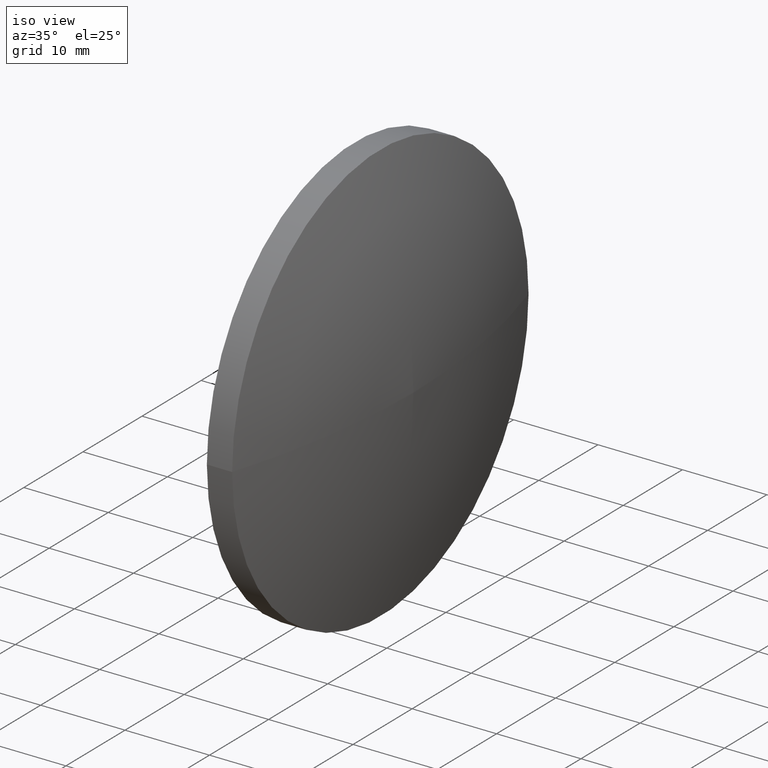
[diagram: clean part render]
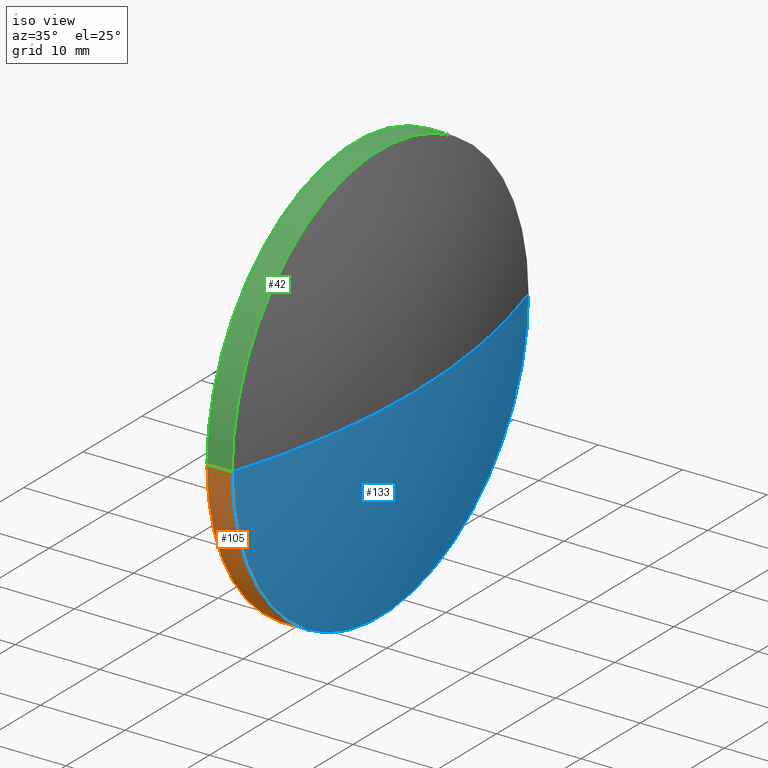
[diagram: same view with three faces highlighted in distinct colors, each labeled with its STEP entity id]
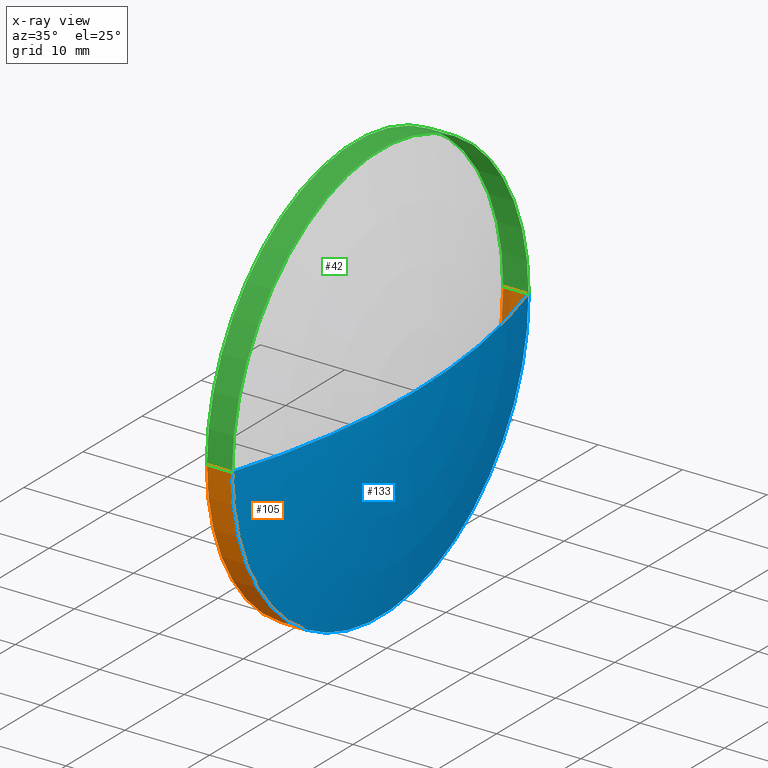
[diagram: x-ray of the same camera — body ghosted, the three highlighted faces saturated]
A machine part, iso view with three faces highlighted in distinct colors.
The next image is the same camera in x-ray (body ghosted, the three faces saturated) — at least one of them is partly hidden behind the body in this view.
Their STEP definitions:

[orange] entity #105 — the highlighted conical surface has half-angle 0.111 deg.
#15 = DIRECTION ( 'NONE',  ( 0.9999924538174724800, -0.003884881994361463100, 2.378808637466067800E-019 ) ) ;
#16 = CARTESIAN_POINT ( 'NONE',  ( 456.5490901359143000, -36.16492559597344300, 0.0000000000000000000 ) ) ;
#17 = CIRCLE ( 'NONE', #65, 25.00578017029978600 ) ;
#21 = VECTOR ( 'NONE', #169, 1000.000000000000000 ) ;
#22 = CARTESIAN_POINT ( 'NONE',  ( 453.5491014551880700, -36.15909827298190000, 0.0000000000000000000 ) ) ;
#23 = EDGE_CURVE ( 'NONE', #58, #166, #17, .T. ) ;
#33 = EDGE_CURVE ( 'NONE', #61, #166, #47, .T. ) ;
#35 = DIRECTION ( 'NONE',  ( 0.9999981134525887100, -0.001942444661694015300, 0.0000000000000000000 ) ) ;
#37 = LINE ( 'NONE', #182, #21 ) ;
#43 = CARTESIAN_POINT ( 'NONE',  ( 453.5976624801175500, -11.15919260026350700, 0.0000000000000000000 ) ) ;
#47 = LINE ( 'NONE', #89, #124 ) ;
#49 = DIRECTION ( 'NONE',  ( -0.9999981134525887100, 0.001942444661694015300, -0.0000000000000000000 ) ) ;
#58 = VERTEX_POINT ( 'NONE', #148 ) ;
#59 = DIRECTION ( 'NONE',  ( -0.001942444661694358800, -0.9999981134525884900, 0.0000000000000000000 ) ) ;
#61 = VERTEX_POINT ( 'NONE', #135 ) ;
#64 = VERTEX_POINT ( 'NONE', #43 ) ;
#65 = AXIS2_PLACEMENT_3D ( 'NONE', #16, #132, #59 ) ;
#69 = ORIENTED_EDGE ( 'NONE', *, *, #23, .T. ) ;
#75 = CARTESIAN_POINT ( 'NONE',  ( 456.5005177917109900, -61.17065859168352700, 0.0000000000000000000 ) ) ;
#82 = EDGE_CURVE ( 'NONE', #64, #61, #123, .T. ) ;
#89 = CARTESIAN_POINT ( 'NONE',  ( 456.5005177917109900, -61.17065859168338400, 3.062324864573999700E-015 ) ) ;
#102 = ORIENTED_EDGE ( 'NONE', *, *, #82, .F. ) ;
#105 = ADVANCED_FACE ( 'NONE', ( #183 ), #163, .T. ) ;
#106 = ORIENTED_EDGE ( 'NONE', *, *, #33, .F. ) ;
#111 = ORIENTED_EDGE ( 'NONE', *, *, #162, .T. ) ;
#122 = AXIS2_PLACEMENT_3D ( 'NONE', #22, #49, #141 ) ;
#123 = CIRCLE ( 'NONE', #122, 24.99995283631470500 ) ;
#124 = VECTOR ( 'NONE', #15, 1000.000000000000100 ) ;
#132 = DIRECTION ( 'NONE',  ( -0.9999981134525887100, 0.001942444661694015300, -0.0000000000000000000 ) ) ;
#135 = CARTESIAN_POINT ( 'NONE',  ( 453.5005404302585800, -61.15900394570029900, 3.061611221982759500E-015 ) ) ;
#136 = EDGE_LOOP ( 'NONE', ( #106, #102, #111, #69 ) ) ;
#141 = DIRECTION ( 'NONE',  ( -0.001942444661694166000, -0.9999981134525887100, 0.0000000000000000000 ) ) ;
#142 = AXIS2_PLACEMENT_3D ( 'NONE', #155, #35, #184 ) ;
#148 = CARTESIAN_POINT ( 'NONE',  ( 456.5976624801175500, -11.15919260026343600, 3.062324864574008000E-015 ) ) ;
#155 = CARTESIAN_POINT ( 'NONE',  ( 456.5490901359143000, -36.16492559597344300, 0.0000000000000000000 ) ) ;
#162 = EDGE_CURVE ( 'NONE', #64, #58, #37, .T. ) ;
#163 = CONICAL_SURFACE ( 'NONE', #142, 25.00578017029979000, 0.001942445883200915900 ) ;
#166 = VERTEX_POINT ( 'NONE', #75 ) ;
#169 = DIRECTION ( 'NONE',  ( 1.000000000000000000, 1.329665544336222600E-015, 0.0000000000000000000 ) ) ;
#182 = CARTESIAN_POINT ( 'NONE',  ( 456.5976624801175500, -11.15919260026350700, 0.0000000000000000000 ) ) ;
#183 = FACE_OUTER_BOUND ( 'NONE', #136, .T. ) ;
#184 = DIRECTION ( 'NONE',  ( 0.001942444661694358600, 0.9999981134525884900, 0.0000000000000000000 ) ) ;

[blue] entity #133 — the highlighted toroidal blend (fillet) surface has major radius 0.1473 mm and minor (blend) radius 82.6844 mm.
#4 = CARTESIAN_POINT ( 'NONE',  ( 460.4676614032583200, -36.17253721817285600, 0.0000000000000000000 ) ) ;
#5 = EDGE_CURVE ( 'NONE', #158, #166, #30, .T. ) ;
#7 = CARTESIAN_POINT ( 'NONE',  ( 377.7835945294264700, -36.01192769086913600, 0.0000000000000000000 ) ) ;
#16 = CARTESIAN_POINT ( 'NONE',  ( 456.5490901359143000, -36.16492559597344300, 0.0000000000000000000 ) ) ;
#17 = CIRCLE ( 'NONE', #65, 25.00578017029978600 ) ;
#23 = EDGE_CURVE ( 'NONE', #58, #166, #17, .T. ) ;
#24 = FACE_OUTER_BOUND ( 'NONE', #38, .T. ) ;
#27 = AXIS2_PLACEMENT_3D ( 'NONE', #7, #80, #140 ) ;
#29 = DIRECTION ( 'NONE',  ( -1.000000000000000000, 0.0000000000000000000, 0.0000000000000000000 ) ) ;
#30 = CIRCLE ( 'NONE', #113, 82.68435400516793300 ) ;
#38 = EDGE_LOOP ( 'NONE', ( #87, #176, #180 ) ) ;
#56 = DIRECTION ( 'NONE',  ( -2.378808637464439400E-019, -1.224644488793104600E-016, 1.000000000000000000 ) ) ;
#58 = VERTEX_POINT ( 'NONE', #148 ) ;
#59 = DIRECTION ( 'NONE',  ( -0.001942444661694358800, -0.9999981134525884900, 0.0000000000000000000 ) ) ;
#63 = TOROIDAL_SURFACE ( 'NONE', #27, -0.1472651872171409100, 82.68435400516793300 ) ;
#65 = AXIS2_PLACEMENT_3D ( 'NONE', #16, #132, #59 ) ;
#75 = CARTESIAN_POINT ( 'NONE',  ( 456.5005177917109900, -61.17065859168352700, 0.0000000000000000000 ) ) ;
#80 = DIRECTION ( 'NONE',  ( -0.9999981134525887100, 0.001942444661694015300, -0.0000000000000000000 ) ) ;
#87 = ORIENTED_EDGE ( 'NONE', *, *, #131, .F. ) ;
#91 = DIRECTION ( 'NONE',  ( 0.0000000000000000000, -1.000000000000000000, -1.224644488793104600E-016 ) ) ;
#104 = CARTESIAN_POINT ( 'NONE',  ( 377.7838805839032300, -35.86466278147475600, 0.0000000000000000000 ) ) ;
#113 = AXIS2_PLACEMENT_3D ( 'NONE', #104, #118, #29 ) ;
#118 = DIRECTION ( 'NONE',  ( 0.0000000000000000000, -0.0000000000000000000, -1.000000000000000000 ) ) ;
#131 = EDGE_CURVE ( 'NONE', #158, #58, #160, .T. ) ;
#132 = DIRECTION ( 'NONE',  ( -0.9999981134525887100, 0.001942444661694015300, -0.0000000000000000000 ) ) ;
#133 = ADVANCED_FACE ( 'NONE', ( #24 ), #63, .T. ) ;
#140 = DIRECTION ( 'NONE',  ( -0.001942444661694015300, -0.9999981134525887100, 0.0000000000000000000 ) ) ;
#148 = CARTESIAN_POINT ( 'NONE',  ( 456.5976624801175500, -11.15919260026343600, 3.062324864574008000E-015 ) ) ;
#158 = VERTEX_POINT ( 'NONE', #4 ) ;
#160 = CIRCLE ( 'NONE', #190, 82.68435400516793300 ) ;
#166 = VERTEX_POINT ( 'NONE', #75 ) ;
#176 = ORIENTED_EDGE ( 'NONE', *, *, #5, .T. ) ;
#180 = ORIENTED_EDGE ( 'NONE', *, *, #23, .F. ) ;
#185 = CARTESIAN_POINT ( 'NONE',  ( 377.7833084749496500, -36.15919260026351600, -1.803478401513073500E-017 ) ) ;
#190 = AXIS2_PLACEMENT_3D ( 'NONE', #185, #56, #91 ) ;

[green] entity #42 — the highlighted conical surface has half-angle 0.111 deg.
#14 = CARTESIAN_POINT ( 'NONE',  ( 456.5490901359143000, -36.16492559597344300, 0.0000000000000000000 ) ) ;
#15 = DIRECTION ( 'NONE',  ( 0.9999924538174724800, -0.003884881994361463100, 2.378808637466067800E-019 ) ) ;
#20 = DIRECTION ( 'NONE',  ( -0.9999981134525887100, 0.001942444661694015300, -0.0000000000000000000 ) ) ;
#21 = VECTOR ( 'NONE', #169, 1000.000000000000000 ) ;
#28 = DIRECTION ( 'NONE',  ( 0.9999981134525887100, -0.001942444661694015300, 0.0000000000000000000 ) ) ;
#33 = EDGE_CURVE ( 'NONE', #61, #166, #47, .T. ) ;
#37 = LINE ( 'NONE', #182, #21 ) ;
#40 = CIRCLE ( 'NONE', #88, 25.00578017029978600 ) ;
#42 = ADVANCED_FACE ( 'NONE', ( #134 ), #101, .T. ) ;
#43 = CARTESIAN_POINT ( 'NONE',  ( 453.5976624801175500, -11.15919260026350700, 0.0000000000000000000 ) ) ;
#45 = CARTESIAN_POINT ( 'NONE',  ( 453.5491014551880700, -36.15909827298190000, 0.0000000000000000000 ) ) ;
#47 = LINE ( 'NONE', #89, #124 ) ;
#58 = VERTEX_POINT ( 'NONE', #148 ) ;
#61 = VERTEX_POINT ( 'NONE', #135 ) ;
#64 = VERTEX_POINT ( 'NONE', #43 ) ;
#75 = CARTESIAN_POINT ( 'NONE',  ( 456.5005177917109900, -61.17065859168352700, 0.0000000000000000000 ) ) ;
#78 = DIRECTION ( 'NONE',  ( -0.001942444661694358800, -0.9999981134525884900, 0.0000000000000000000 ) ) ;
#88 = AXIS2_PLACEMENT_3D ( 'NONE', #96, #110, #78 ) ;
#89 = CARTESIAN_POINT ( 'NONE',  ( 456.5005177917109900, -61.17065859168338400, 3.062324864573999700E-015 ) ) ;
#92 = ORIENTED_EDGE ( 'NONE', *, *, #162, .F. ) ;
#96 = CARTESIAN_POINT ( 'NONE',  ( 456.5490901359143000, -36.16492559597344300, 0.0000000000000000000 ) ) ;
#101 = CONICAL_SURFACE ( 'NONE', #107, 25.00578017029979000, 0.001942445883200915900 ) ;
#103 = AXIS2_PLACEMENT_3D ( 'NONE', #45, #20, #167 ) ;
#107 = AXIS2_PLACEMENT_3D ( 'NONE', #14, #28, #130 ) ;
#110 = DIRECTION ( 'NONE',  ( -0.9999981134525887100, 0.001942444661694015300, -0.0000000000000000000 ) ) ;
#120 = ORIENTED_EDGE ( 'NONE', *, *, #126, .T. ) ;
#124 = VECTOR ( 'NONE', #15, 1000.000000000000100 ) ;
#125 = ORIENTED_EDGE ( 'NONE', *, *, #33, .T. ) ;
#126 = EDGE_CURVE ( 'NONE', #166, #58, #40, .T. ) ;
#130 = DIRECTION ( 'NONE',  ( 0.001942444661694358600, 0.9999981134525884900, 0.0000000000000000000 ) ) ;
#134 = FACE_OUTER_BOUND ( 'NONE', #143, .T. ) ;
#135 = CARTESIAN_POINT ( 'NONE',  ( 453.5005404302585800, -61.15900394570029900, 3.061611221982759500E-015 ) ) ;
#137 = EDGE_CURVE ( 'NONE', #61, #64, #186, .T. ) ;
#143 = EDGE_LOOP ( 'NONE', ( #174, #125, #120, #92 ) ) ;
#148 = CARTESIAN_POINT ( 'NONE',  ( 456.5976624801175500, -11.15919260026343600, 3.062324864574008000E-015 ) ) ;
#162 = EDGE_CURVE ( 'NONE', #64, #58, #37, .T. ) ;
#166 = VERTEX_POINT ( 'NONE', #75 ) ;
#167 = DIRECTION ( 'NONE',  ( -0.001942444661694166000, -0.9999981134525887100, 0.0000000000000000000 ) ) ;
#169 = DIRECTION ( 'NONE',  ( 1.000000000000000000, 1.329665544336222600E-015, 0.0000000000000000000 ) ) ;
#174 = ORIENTED_EDGE ( 'NONE', *, *, #137, .F. ) ;
#182 = CARTESIAN_POINT ( 'NONE',  ( 456.5976624801175500, -11.15919260026350700, 0.0000000000000000000 ) ) ;
#186 = CIRCLE ( 'NONE', #103, 24.99995283631470500 ) ;